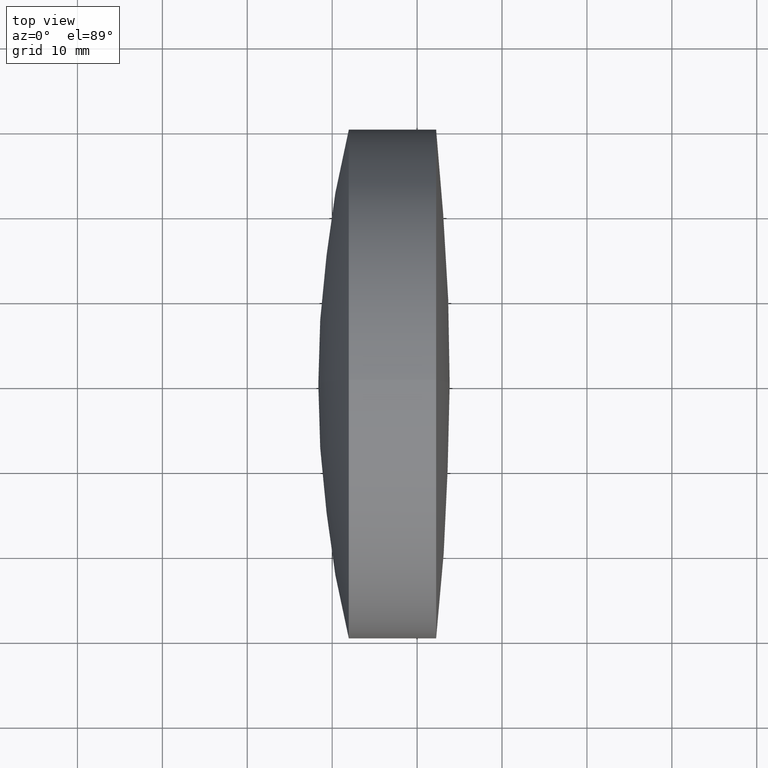
[diagram: clean part render]
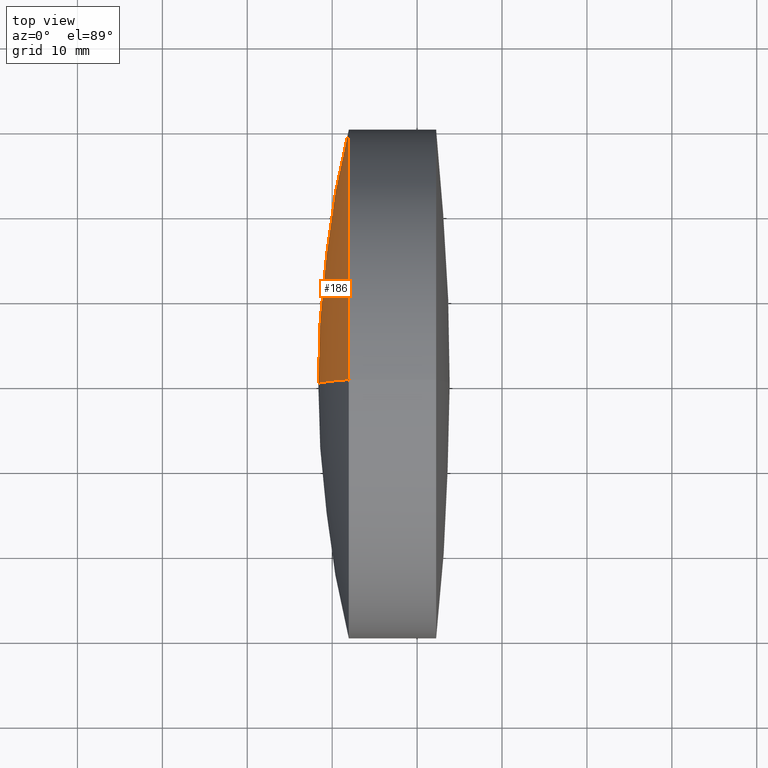
[diagram: same view with one face highlighted and labeled with its STEP entity id]
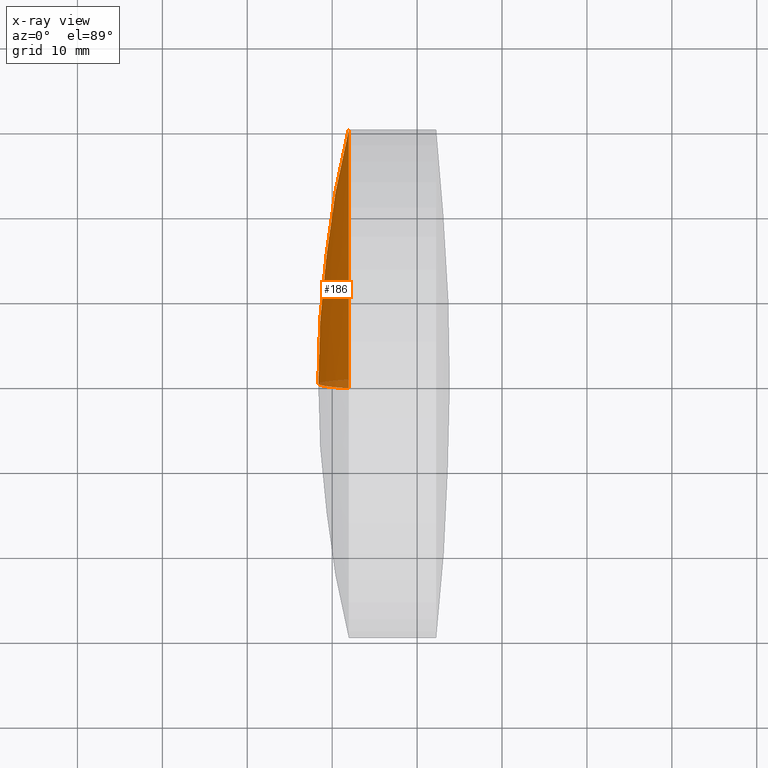
[diagram: x-ray of the same camera — body ghosted, the highlighted face saturated]
A machine part, top view. The second image highlights one B-rep face of the part: STEP entity #186.
The next image is the same camera in x-ray: the body ghosted, the highlighted face saturated — about 3% of this face is hidden behind the body in this view.
In plain terms, the highlighted spherical surface has radius 127.133 mm.
Its self-contained STEP definition (entity closure, byte-faithful):
#4 = DIRECTION ( 'NONE',  ( -0.0000000000000000000, -1.000000000000000000, -0.0000000000000000000 ) ) ;
#18 = VERTEX_POINT ( 'NONE', #164 ) ;
#22 = EDGE_LOOP ( 'NONE', ( #73, #336, #310 ) ) ;
#40 = VERTEX_POINT ( 'NONE', #337 ) ;
#45 = DIRECTION ( 'NONE',  ( -1.000000000000000000, -0.0000000000000000000, -0.0000000000000000000 ) ) ;
#50 = CARTESIAN_POINT ( 'NONE',  ( 301.9579216428196600, 0.0000000000000000000, 0.0000000000000000000 ) ) ;
#60 = CIRCLE ( 'NONE', #125, 127.1330000000000200 ) ;
#73 = ORIENTED_EDGE ( 'NONE', *, *, #335, .F. ) ;
#115 = DIRECTION ( 'NONE',  ( 0.0000000000000000000, 0.0000000000000000000, -1.000000000000000000 ) ) ;
#117 = EDGE_CURVE ( 'NONE', #40, #18, #243, .T. ) ;
#125 = AXIS2_PLACEMENT_3D ( 'NONE', #219, #216, #212 ) ;
#128 = SPHERICAL_SURFACE ( 'NONE', #163, 127.1330000000000200 ) ;
#158 = DIRECTION ( 'NONE',  ( 0.0000000000000000000, 0.0000000000000000000, 1.000000000000000000 ) ) ;
#162 = DIRECTION ( 'NONE',  ( 0.0000000000000000000, 1.000000000000000000, -0.0000000000000000000 ) ) ;
#163 = AXIS2_PLACEMENT_3D ( 'NONE', #330, #4, #115 ) ;
#164 = CARTESIAN_POINT ( 'NONE',  ( 301.9579216428196600, 0.0000000000000000000, -30.00000000000000000 ) ) ;
#166 = CARTESIAN_POINT ( 'NONE',  ( 425.5006255512253700, 0.0000000000000000000, 2.406979665614141600E-015 ) ) ;
#180 = AXIS2_PLACEMENT_3D ( 'NONE', #50, #45, #223 ) ;
#186 = ADVANCED_FACE ( 'NONE', ( #248 ), #128, .T. ) ;
#212 = DIRECTION ( 'NONE',  ( 0.0000000000000000000, 1.224646799147353200E-016, -1.000000000000000000 ) ) ;
#216 = DIRECTION ( 'NONE',  ( 0.0000000000000000000, -1.000000000000000000, -1.224646799147353200E-016 ) ) ;
#217 = VERTEX_POINT ( 'NONE', #246 ) ;
#219 = CARTESIAN_POINT ( 'NONE',  ( 425.5006255512253700, 0.0000000000000000000, 2.406979665614141600E-015 ) ) ;
#223 = DIRECTION ( 'NONE',  ( 0.0000000000000000000, 0.0000000000000000000, 1.000000000000000000 ) ) ;
#243 = CIRCLE ( 'NONE', #180, 30.00000000000000400 ) ;
#246 = CARTESIAN_POINT ( 'NONE',  ( 298.3676255512253300, 0.0000000000000000000, -5.377671410185881900E-015 ) ) ;
#248 = FACE_OUTER_BOUND ( 'NONE', #22, .T. ) ;
#249 = EDGE_CURVE ( 'NONE', #18, #217, #334, .T. ) ;
#297 = AXIS2_PLACEMENT_3D ( 'NONE', #166, #162, #158 ) ;
#310 = ORIENTED_EDGE ( 'NONE', *, *, #249, .T. ) ;
#330 = CARTESIAN_POINT ( 'NONE',  ( 425.5006255512253700, 0.0000000000000000000, 2.406979665614141600E-015 ) ) ;
#334 = CIRCLE ( 'NONE', #297, 127.1330000000000200 ) ;
#335 = EDGE_CURVE ( 'NONE', #40, #217, #60, .T. ) ;
#336 = ORIENTED_EDGE ( 'NONE', *, *, #117, .T. ) ;
#337 = CARTESIAN_POINT ( 'NONE',  ( 301.9579216428196600, -3.673940397442059200E-015, 30.00000000000000000 ) ) ;